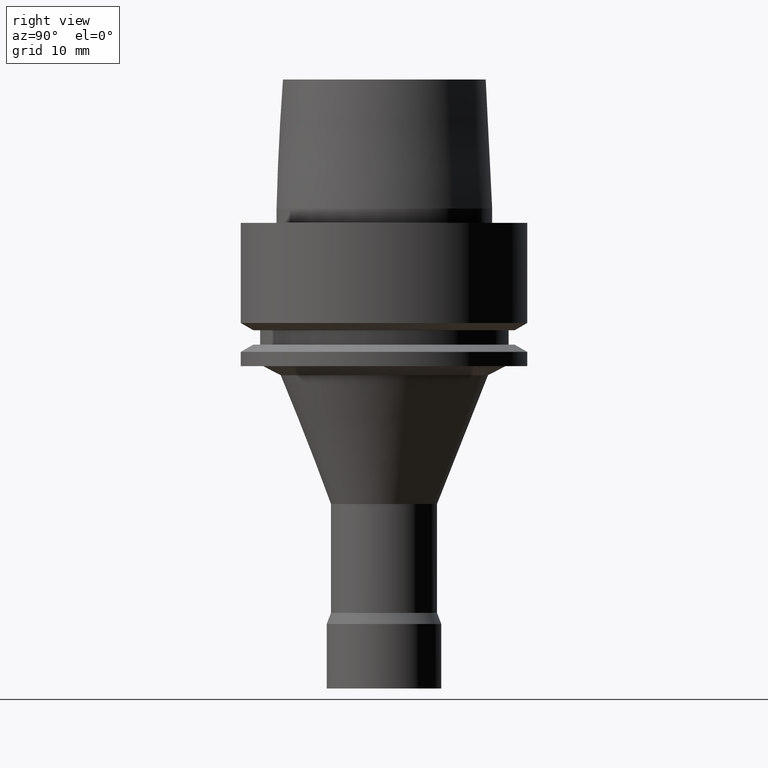
[diagram: clean part render]
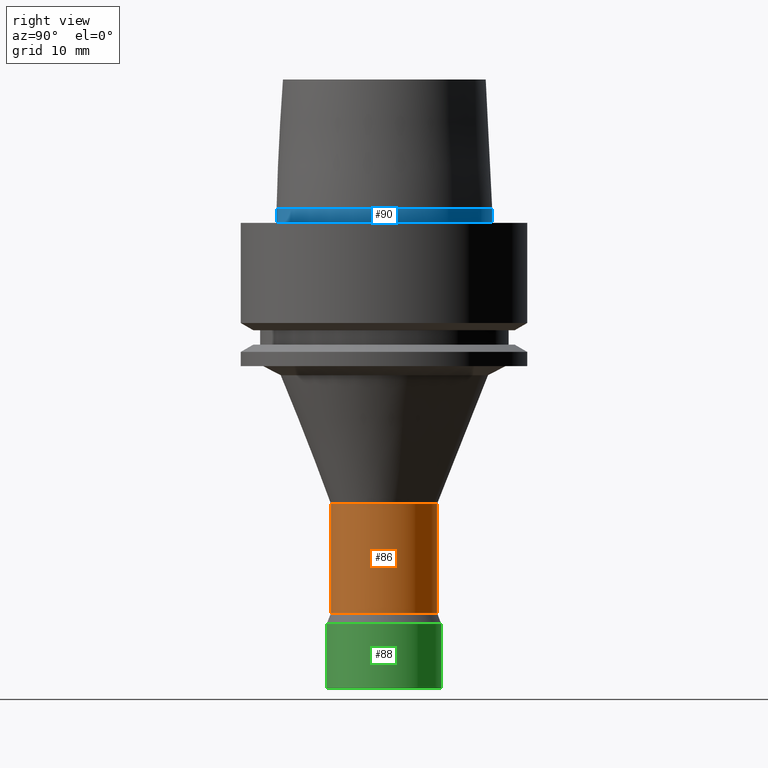
[diagram: same view with three faces highlighted in distinct colors, each labeled with its STEP entity id]
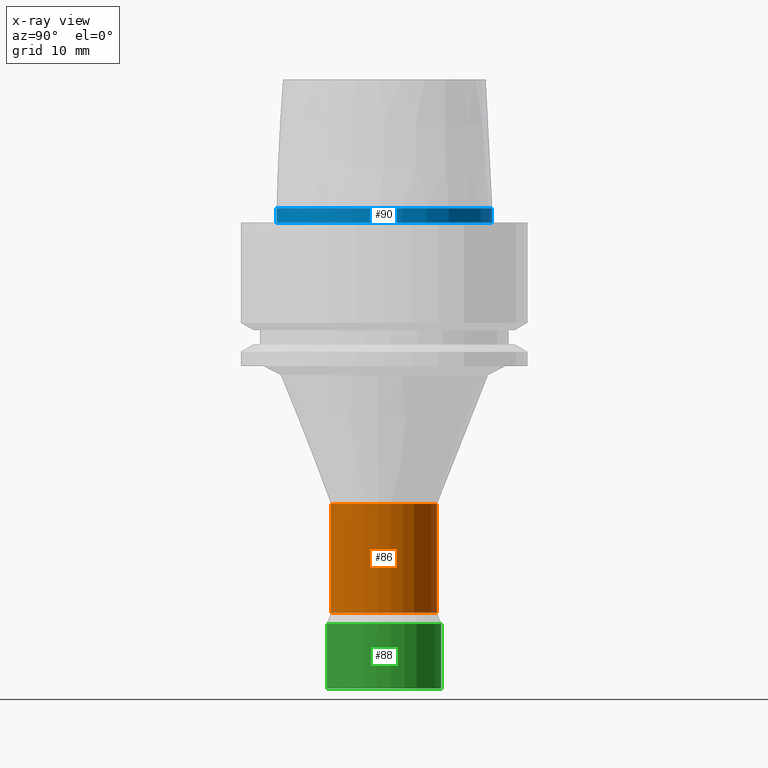
[diagram: x-ray of the same camera — body ghosted, the three highlighted faces saturated]
A machine part, right view with three faces highlighted in distinct colors.
The next image is the same camera in x-ray (body ghosted, the three faces saturated) — at least one of them is partly hidden behind the body in this view.
Their STEP definitions:

[orange] entity #86 — the highlighted cylindrical surface (bore or boss wall) has radius 7.4 mm, axis along (-0, -0, 1).
#86=ADVANCED_FACE('',(#127,#128),#129,.T.);
#127=FACE_BOUND('',#179,.T.);
#128=FACE_BOUND('',#180,.T.);
#129=CYLINDRICAL_SURFACE('',#181,7.4);
#179=EDGE_LOOP('',(#253));
#180=EDGE_LOOP('',(#254));
#181=AXIS2_PLACEMENT_3D('',#255,#256,#257);
#253=ORIENTED_EDGE('',*,*,#298,.F.);
#254=ORIENTED_EDGE('',*,*,#297,.T.);
#255=CARTESIAN_POINT('',(2.8688333250001E-015,5.7376666500002E-015,-46.851603695));
#256=DIRECTION('',(-6.12323399573677E-017,-1.22464679914735E-016,1.0));
#257=DIRECTION('',(-1.23259516440783E-032,1.0,1.22464679914735E-016));
#297=EDGE_CURVE('',#325,#325,#326,.T.);
#298=EDGE_CURVE('',#327,#327,#328,.T.);
#325=VERTEX_POINT('',#359);
#326=CIRCLE('',#360,7.4);
#327=VERTEX_POINT('',#361);
#328=CIRCLE('',#362,7.4);
#359=CARTESIAN_POINT('',(2.4035348469937E-015,7.4,-39.25270288));
#360=AXIS2_PLACEMENT_3D('',#404,#405,#406);
#361=CARTESIAN_POINT('',(3.3341318030065E-015,7.40000000000001,-54.45050451));
#362=AXIS2_PLACEMENT_3D('',#407,#408,#409);
#404=CARTESIAN_POINT('',(2.4035348469937E-015,4.80706969398741E-015,-39.25270288));
#405=DIRECTION('',(6.12323399573677E-017,1.22464679914735E-016,-1.0));
#406=DIRECTION('',(-1.23259516440783E-032,1.0,1.22464679914735E-016));
#407=CARTESIAN_POINT('',(3.3341318030065E-015,6.668263606013E-015,-54.45050451));
#408=DIRECTION('',(6.12323399573677E-017,1.22464679914735E-016,-1.0));
#409=DIRECTION('',(-1.23259516440783E-032,1.0,1.22464679914735E-016));

[blue] entity #90 — the highlighted cylindrical surface (bore or boss wall) has radius 15.1 mm, axis along (-0, -0, 1).
#90=ADVANCED_FACE('',(#138,#139),#140,.T.);
#138=FACE_BOUND('',#190,.T.);
#139=FACE_BOUND('',#191,.T.);
#140=CYLINDRICAL_SURFACE('',#192,15.1);
#190=EDGE_LOOP('',(#272));
#191=EDGE_LOOP('',(#273));
#192=AXIS2_PLACEMENT_3D('',#274,#275,#276);
#272=ORIENTED_EDGE('',*,*,#287,.F.);
#273=ORIENTED_EDGE('',*,*,#301,.T.);
#274=CARTESIAN_POINT('',(-6.12323399573677E-017,-1.22464679914735E-016,1.0));
#275=DIRECTION('',(-6.12323399573677E-017,-1.22464679914735E-016,1.0));
#276=DIRECTION('',(-1.23259516440783E-032,1.0,1.22464679914735E-016));
#287=EDGE_CURVE('',#305,#305,#306,.T.);
#301=EDGE_CURVE('',#333,#333,#334,.T.);
#305=VERTEX_POINT('',#339);
#306=CIRCLE('',#340,15.1);
#333=VERTEX_POINT('',#367);
#334=CIRCLE('',#368,15.1);
#339=CARTESIAN_POINT('',(-1.86121869825582E-031,15.1,1.8492166667125E-015));
#340=AXIS2_PLACEMENT_3D('',#374,#375,#376);
#367=CARTESIAN_POINT('',(-1.22464679914736E-016,15.1,2.0));
#368=AXIS2_PLACEMENT_3D('',#416,#417,#418);
#374=CARTESIAN_POINT('',(0.0,0.0,0.0));
#375=DIRECTION('',(6.12323399573677E-017,1.22464679914735E-016,-1.0));
#376=DIRECTION('',(-1.23259516440783E-032,1.0,1.22464679914735E-016));
#416=CARTESIAN_POINT('',(-1.22464679914735E-016,-2.44929359829471E-016,2.0));
#417=DIRECTION('',(6.12323399573677E-017,1.22464679914735E-016,-1.0));
#418=DIRECTION('',(-1.23259516440783E-032,1.0,1.22464679914735E-016));

[green] entity #88 — the highlighted cylindrical surface (bore or boss wall) has radius 8 mm, axis along (-0, -0, 1).
#88=ADVANCED_FACE('',(#133,#134),#135,.T.);
#133=FACE_BOUND('',#185,.T.);
#134=FACE_BOUND('',#186,.T.);
#135=CYLINDRICAL_SURFACE('',#187,8.0);
#185=EDGE_LOOP('',(#263));
#186=EDGE_LOOP('',(#264));
#187=AXIS2_PLACEMENT_3D('',#265,#266,#267);
#263=ORIENTED_EDGE('',*,*,#300,.F.);
#264=ORIENTED_EDGE('',*,*,#299,.T.);
#265=CARTESIAN_POINT('',(3.70455656742074E-015,7.40911313484149E-015,-60.5));
#266=DIRECTION('',(-6.12323399573677E-017,-1.22464679914735E-016,1.0));
#267=DIRECTION('',(-1.23259516440783E-032,1.0,1.22464679914735E-016));
#299=EDGE_CURVE('',#329,#329,#330,.T.);
#300=EDGE_CURVE('',#331,#331,#332,.T.);
#329=VERTEX_POINT('',#363);
#330=CIRCLE('',#364,8.0);
#331=VERTEX_POINT('',#365);
#332=CIRCLE('',#366,8.0);
#363=CARTESIAN_POINT('',(3.42901103761259E-015,8.00000000000001,-56.0));
#364=AXIS2_PLACEMENT_3D('',#410,#411,#412);
#365=CARTESIAN_POINT('',(3.9801020972289E-015,8.00000000000001,-65.0));
#366=AXIS2_PLACEMENT_3D('',#413,#414,#415);
#410=CARTESIAN_POINT('',(3.42901103761259E-015,6.85802207522518E-015,-56.0));
#411=DIRECTION('',(6.12323399573677E-017,1.22464679914735E-016,-1.0));
#412=DIRECTION('',(-1.23259516440783E-032,1.0,1.22464679914735E-016));
#413=CARTESIAN_POINT('',(3.9801020972289E-015,7.96020419445779E-015,-65.0));
#414=DIRECTION('',(6.12323399573677E-017,1.22464679914735E-016,-1.0));
#415=DIRECTION('',(-1.23259516440783E-032,1.0,1.22464679914735E-016));